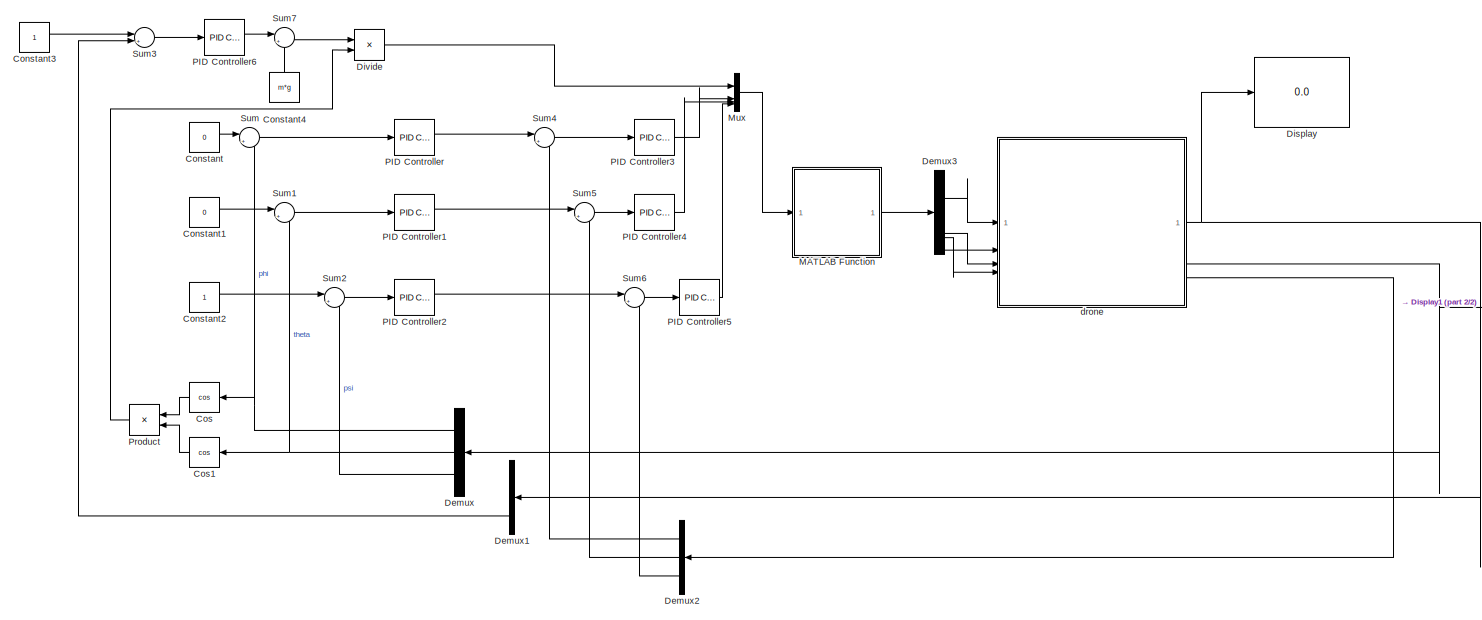
[diagram: root canvas - part 1/2, most of the canvas]
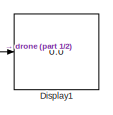
[diagram: root canvas - part 2/2, middle right region]
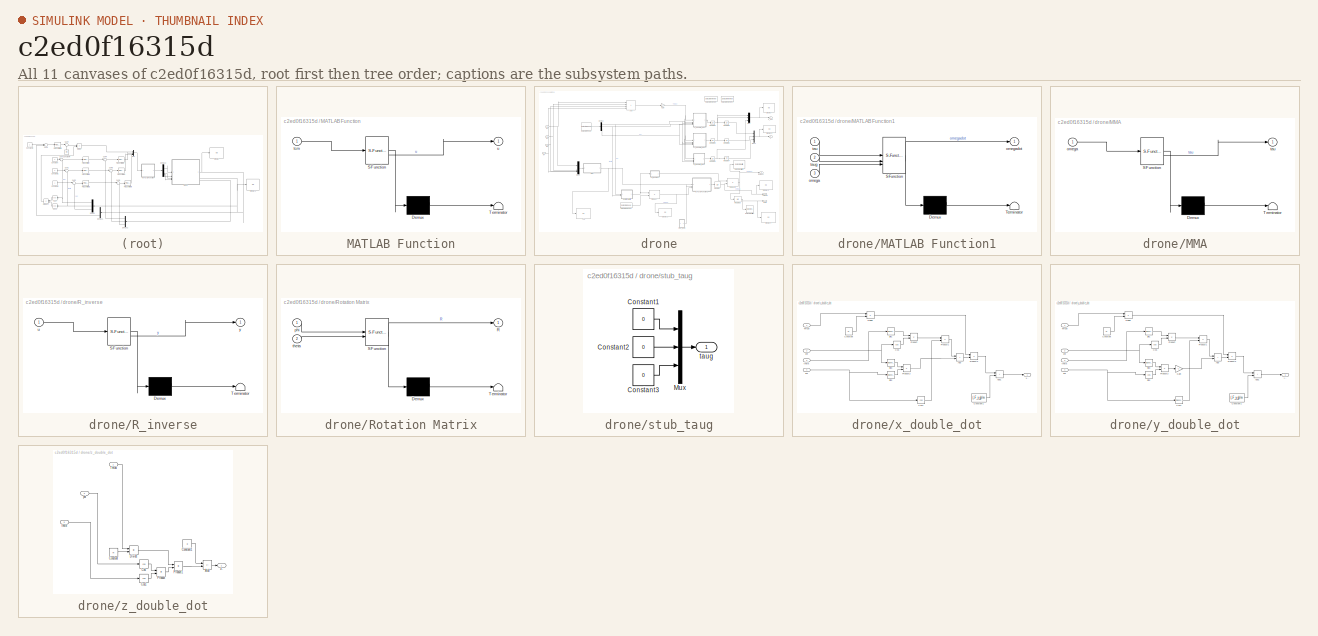
[diagram: thumbnail index - all 11 canvases of the model, root first then tree order]
MODEL slx_c2ed0f16315d
KIND model
CONFIG AbsTol = auto
CONFIG EnableMultiTasking = off
CONFIG FixedStep = auto
CONFIG MaxStep = auto
CONFIG MinStep = auto
CONFIG RelTol = 1e-3
CONFIG SampleTimeConstraint = Unconstrained
CONFIG SolverName = VariableStepAuto
CONFIG StartTime = 0.0
CONFIG StopTime = 10.0
BLOCK [Constant] Constant
  Value = 0
BLOCK [Constant] Constant1
  Value = 0
BLOCK [Constant] Constant2
BLOCK [Constant] Constant3
BLOCK [Constant] Constant4
  NameLocation = right
  Value = m*g
BLOCK [Trigonometry] Cos
  Operator = cos
BLOCK [Trigonometry] Cos1
  Operator = cos
BLOCK [Demux] Demux
  Outputs = 3
BLOCK [Demux] Demux1
  Outputs = 3
BLOCK [Demux] Demux2
  Outputs = 3
BLOCK [Demux] Demux3
BLOCK [Display] Display
  Decimation = 1
BLOCK [Display] Display1
  Decimation = 1
BLOCK [Product] Divide
  Inputs = */
BLOCK [SubSystem] MATLAB Function
  ErrorFcn = Stateflow.Translate.translate
  LibrarySourceBlock = simulink/User-Defined\nFunctions/MATLAB Function
  PermitHierarchicalResolution = ExplicitOnly
  SFBlockType = MATLAB Function
  TreatAsAtomicUnit = on
BLOCK [Demux] MATLAB Function/ Demux 
  Outputs = 1
BLOCK [S-Function] MATLAB Function/ SFunction 
  EnableBusSupport = on
  FunctionName = sf_sfun
  PortCounts = [1 2]
  SFcnIsStateOwnerBlock = off
  SFunctionDeploymentMode = off
  Tag = Stateflow S-Function 5
BLOCK [Terminator] MATLAB Function/ Terminator 
BLOCK [Inport] MATLAB Function/tcm
BLOCK [Outport] MATLAB Function/u
BLOCK [Mux] Mux
  DisplayOption = bar
BLOCK [Reference] PID Controller  REF=slpidlib/PID Controller
  LibrarySourceBlock = simulink/Continuous/PID Controller
  SourceBlock = slpidlib/PID Controller
  SourceType = PID 1dof
BLOCK [Reference] PID Controller1  REF=slpidlib/PID Controller
  LibrarySourceBlock = simulink/Continuous/PID Controller
  SourceBlock = slpidlib/PID Controller
  SourceType = PID 1dof
BLOCK [Reference] PID Controller2  REF=slpidlib/PID Controller
  LibrarySourceBlock = simulink/Continuous/PID Controller
  SourceBlock = slpidlib/PID Controller
  SourceType = PID 1dof
BLOCK [Reference] PID Controller3  REF=slpidlib/PID Controller
  LibrarySourceBlock = simulink/Continuous/PID Controller
  SourceBlock = slpidlib/PID Controller
  SourceType = PID 1dof
BLOCK [Reference] PID Controller4  REF=slpidlib/PID Controller
  LibrarySourceBlock = simulink/Continuous/PID Controller
  SourceBlock = slpidlib/PID Controller
  SourceType = PID 1dof
BLOCK [Reference] PID Controller5  REF=slpidlib/PID Controller
  LibrarySourceBlock = simulink/Continuous/PID Controller
  SourceBlock = slpidlib/PID Controller
  SourceType = PID 1dof
BLOCK [Reference] PID Controller6  REF=slpidlib/PID Controller
  LibrarySourceBlock = simulink/Continuous/PID Controller
  SourceBlock = slpidlib/PID Controller
  SourceType = PID 1dof
BLOCK [Product] Product
BLOCK [Sum] Sum
  Inputs = |+-
BLOCK [Sum] Sum1
  Inputs = |+-
BLOCK [Sum] Sum2
  Inputs = |+-
BLOCK [Sum] Sum3
  Inputs = |+-
BLOCK [Sum] Sum4
  Inputs = |+-
BLOCK [Sum] Sum5
  Inputs = |+-
BLOCK [Sum] Sum6
  Inputs = |+-
BLOCK [Sum] Sum7
  Inputs = |++
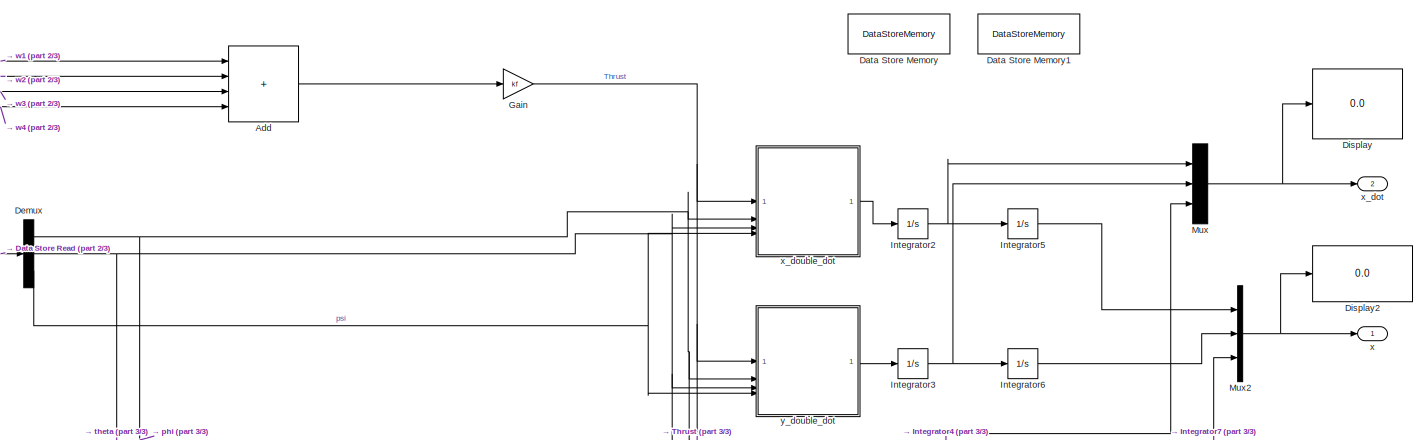
[diagram: drone - part 1/3, full width, top band]
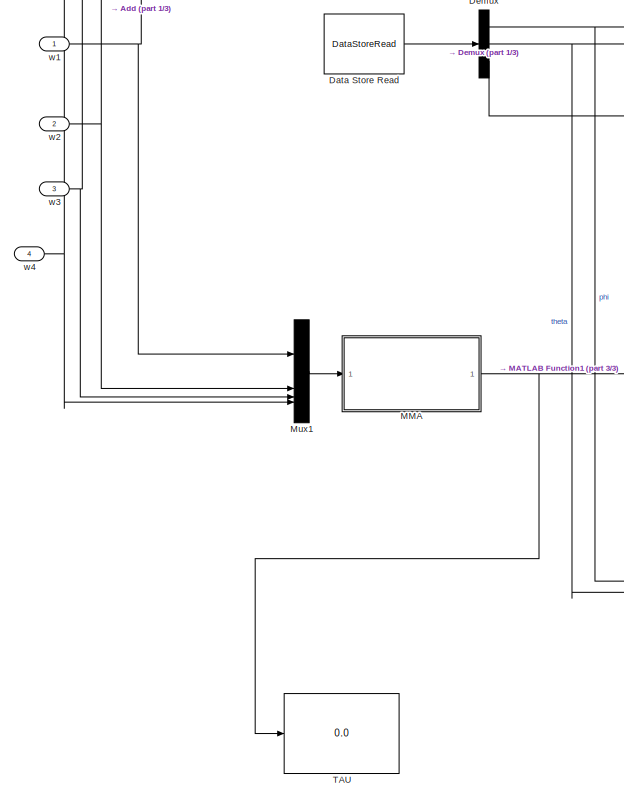
[diagram: drone - part 2/3, middle left region]
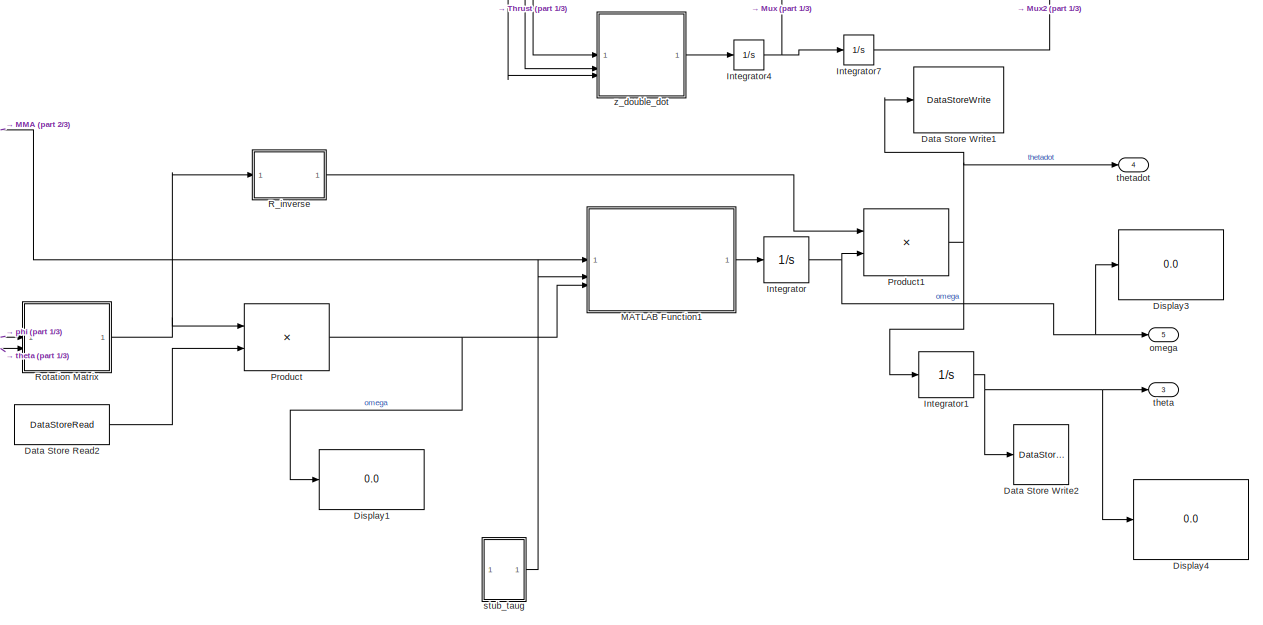
[diagram: drone - part 3/3, bottom center region]
BLOCK [SubSystem] drone
BLOCK [Sum] drone/Add
  IconShape = rectangular
  Inputs = ++++
BLOCK [DataStoreMemory] drone/Data Store Memory
  DataStoreName = theta
  InitialValue = [0 ; 0 ; 0]
  ShowAdditionalParam = off
  WriteAfterWriteMsg = warning
BLOCK [DataStoreMemory] drone/Data Store Memory1
  DataStoreName = thetadot
  InitialValue = [1.4430 ; 0.4620 ; -1.4048\n]
  ShowAdditionalParam = off
  WriteAfterWriteMsg = warning
BLOCK [DataStoreRead] drone/Data Store Read
  DataStoreName = theta
  IndexOptions = Index vector (dialog)
  Indices = 1
  OutputSizes = 1
BLOCK [DataStoreRead] drone/Data Store Read2
  DataStoreName = thetadot
  IndexOptions = Index vector (dialog)
  Indices = 1
  OutputSizes = 1
BLOCK [DataStoreWrite] drone/Data Store Write1
  DataStoreName = thetadot
  IndexOptions = Index vector (dialog)
  Indices = 1
  OutputSizes = 1
BLOCK [DataStoreWrite] drone/Data Store Write2
  DataStoreName = theta
  IndexOptions = Index vector (dialog)
  Indices = 1
  OutputSizes = 1
BLOCK [Demux] drone/Demux
  Outputs = 3
BLOCK [Display] drone/Display
  Decimation = 1
BLOCK [Display] drone/Display1
  Decimation = 1
BLOCK [Display] drone/Display2
  Decimation = 1
BLOCK [Display] drone/Display3
  Decimation = 1
BLOCK [Display] drone/Display4
  Decimation = 1
BLOCK [Gain] drone/Gain
  Gain = kf
BLOCK [Integrator] drone/Integrator
BLOCK [Integrator] drone/Integrator1
  WrapState = on
BLOCK [Integrator] drone/Integrator2
BLOCK [Integrator] drone/Integrator3
BLOCK [Integrator] drone/Integrator4
BLOCK [Integrator] drone/Integrator5
BLOCK [Integrator] drone/Integrator6
BLOCK [Integrator] drone/Integrator7
BLOCK [SubSystem] drone/MATLAB Function1
  ErrorFcn = Stateflow.Translate.translate
  LibrarySourceBlock = simulink/User-Defined\nFunctions/MATLAB Function
  PermitHierarchicalResolution = ExplicitOnly
  SFBlockType = MATLAB Function
  TreatAsAtomicUnit = on
BLOCK [Demux] drone/MATLAB Function1/ Demux 
  Outputs = 1
BLOCK [S-Function] drone/MATLAB Function1/ SFunction 
  EnableBusSupport = on
  FunctionName = sf_sfun
  PortCounts = [3 2]
  SFcnIsStateOwnerBlock = off
  SFunctionDeploymentMode = off
  Tag = Stateflow S-Function 1
BLOCK [Terminator] drone/MATLAB Function1/ Terminator 
BLOCK [Inport] drone/MATLAB Function1/omega
  Port = 3
BLOCK [Outport] drone/MATLAB Function1/omegadot
BLOCK [Inport] drone/MATLAB Function1/tau
BLOCK [Inport] drone/MATLAB Function1/taug
  Port = 2
BLOCK [SubSystem] drone/MMA
  ErrorFcn = Stateflow.Translate.translate
  LibrarySourceBlock = simulink/User-Defined\nFunctions/MATLAB Function
  PermitHierarchicalResolution = ExplicitOnly
  SFBlockType = MATLAB Function
  TreatAsAtomicUnit = on
BLOCK [Demux] drone/MMA/ Demux 
  Outputs = 1
BLOCK [S-Function] drone/MMA/ SFunction 
  EnableBusSupport = on
  FunctionName = sf_sfun
  PortCounts = [1 2]
  SFcnIsStateOwnerBlock = off
  SFunctionDeploymentMode = off
  Tag = Stateflow S-Function 3
BLOCK [Terminator] drone/MMA/ Terminator 
BLOCK [Inport] drone/MMA/omega
BLOCK [Outport] drone/MMA/tau
BLOCK [Mux] drone/Mux
  DisplayOption = bar
  Inputs = 3
BLOCK [Mux] drone/Mux1
  DisplayOption = bar
BLOCK [Mux] drone/Mux2
  DisplayOption = bar
  Inputs = 3
BLOCK [Product] drone/Product
  Multiplication = Matrix(*)
BLOCK [Product] drone/Product1
  Multiplication = Matrix(*)
BLOCK [SubSystem] drone/R_inverse
  ErrorFcn = Stateflow.Translate.translate
  LibrarySourceBlock = simulink/User-Defined\nFunctions/MATLAB Function
  PermitHierarchicalResolution = ExplicitOnly
  SFBlockType = MATLAB Function
  TreatAsAtomicUnit = on
BLOCK [Demux] drone/R_inverse/ Demux 
  Outputs = 1
BLOCK [S-Function] drone/R_inverse/ SFunction 
  EnableBusSupport = on
  FunctionName = sf_sfun
  PortCounts = [1 2]
  SFcnIsStateOwnerBlock = off
  SFunctionDeploymentMode = off
  Tag = Stateflow S-Function 2
BLOCK [Terminator] drone/R_inverse/ Terminator 
BLOCK [Inport] drone/R_inverse/u
BLOCK [Outport] drone/R_inverse/y
BLOCK [SubSystem] drone/Rotation Matrix
  ErrorFcn = Stateflow.Translate.translate
  LibrarySourceBlock = simulink/User-Defined\nFunctions/MATLAB Function
  PermitHierarchicalResolution = ExplicitOnly
  SFBlockType = MATLAB Function
  TreatAsAtomicUnit = on
BLOCK [Demux] drone/Rotation Matrix/ Demux 
  Outputs = 1
BLOCK [S-Function] drone/Rotation Matrix/ SFunction 
  EnableBusSupport = on
  FunctionName = sf_sfun
  PortCounts = [2 2]
  SFcnIsStateOwnerBlock = off
  SFunctionDeploymentMode = off
  Tag = Stateflow S-Function 4
BLOCK [Terminator] drone/Rotation Matrix/ Terminator 
BLOCK [Outport] drone/Rotation Matrix/R
BLOCK [Inport] drone/Rotation Matrix/phi
BLOCK [Inport] drone/Rotation Matrix/theta
  Port = 2
BLOCK [Display] drone/TAU
  Decimation = 1
BLOCK [Outport] drone/omega
  Port = 5
BLOCK [SubSystem] drone/stub_taug
BLOCK [Constant] drone/stub_taug/Constant1
  Value = 0
BLOCK [Constant] drone/stub_taug/Constant2
  Value = 0
BLOCK [Constant] drone/stub_taug/Constant3
  Value = 0
BLOCK [Mux] drone/stub_taug/Mux
  DisplayOption = bar
  Inputs = 3
BLOCK [Outport] drone/stub_taug/taug
BLOCK [Outport] drone/theta
  Port = 3
BLOCK [Outport] drone/thetadot
  Port = 4
BLOCK [Inport] drone/w1
BLOCK [Inport] drone/w2
  Port = 2
BLOCK [Inport] drone/w3
  Port = 3
BLOCK [Inport] drone/w4
  Port = 4
BLOCK [Outport] drone/x
BLOCK [Outport] drone/x_dot
  Port = 2
BLOCK [SubSystem] drone/x_double_dot
BLOCK [Sum] drone/x_double_dot/Add
  IconShape = rectangular
BLOCK [Sum] drone/x_double_dot/Add1
  IconShape = rectangular
BLOCK [Constant] drone/x_double_dot/Constant
  Value = m
BLOCK [Constant] drone/x_double_dot/Constant1
  Value = (-F_x_g)/m
BLOCK [Trigonometry] drone/x_double_dot/Cos
  Operator = cos
BLOCK [Trigonometry] drone/x_double_dot/Cos1
  Operator = cos
BLOCK [Product] drone/x_double_dot/Divide
  Inputs = */
BLOCK [Product] drone/x_double_dot/Product
BLOCK [Product] drone/x_double_dot/Product1
BLOCK [Product] drone/x_double_dot/Product2
BLOCK [Product] drone/x_double_dot/Product3
BLOCK [Trigonometry] drone/x_double_dot/Sin1
BLOCK [Trigonometry] drone/x_double_dot/Sin2
BLOCK [Trigonometry] drone/x_double_dot/Sin3
BLOCK [Inport] drone/x_double_dot/Thrust
BLOCK [Inport] drone/x_double_dot/phi
  Port = 2
BLOCK [Inport] drone/x_double_dot/psi
  Port = 4
BLOCK [Inport] drone/x_double_dot/theta
  Port = 3
BLOCK [Outport] drone/x_double_dot/x..
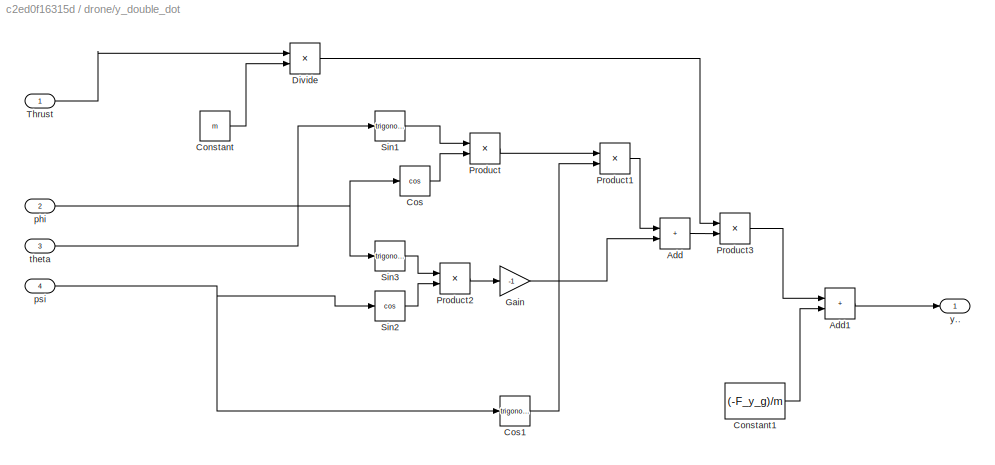
BLOCK [SubSystem] drone/y_double_dot
BLOCK [Sum] drone/y_double_dot/Add
  IconShape = rectangular
BLOCK [Sum] drone/y_double_dot/Add1
  IconShape = rectangular
BLOCK [Constant] drone/y_double_dot/Constant
  Value = m
BLOCK [Constant] drone/y_double_dot/Constant1
  Value = (-F_y_g)/m
BLOCK [Trigonometry] drone/y_double_dot/Cos
  Operator = cos
BLOCK [Trigonometry] drone/y_double_dot/Cos1
BLOCK [Product] drone/y_double_dot/Divide
  Inputs = */
BLOCK [Gain] drone/y_double_dot/Gain
  Gain = -1
BLOCK [Product] drone/y_double_dot/Product
BLOCK [Product] drone/y_double_dot/Product1
BLOCK [Product] drone/y_double_dot/Product2
BLOCK [Product] drone/y_double_dot/Product3
BLOCK [Trigonometry] drone/y_double_dot/Sin1
BLOCK [Trigonometry] drone/y_double_dot/Sin2
  Operator = cos
BLOCK [Trigonometry] drone/y_double_dot/Sin3
BLOCK [Inport] drone/y_double_dot/Thrust
BLOCK [Inport] drone/y_double_dot/phi
  Port = 2
BLOCK [Inport] drone/y_double_dot/psi
  Port = 4
BLOCK [Inport] drone/y_double_dot/theta
  Port = 3
BLOCK [Outport] drone/y_double_dot/y..
BLOCK [SubSystem] drone/z_double_dot
BLOCK [Sum] drone/z_double_dot/Add
  IconShape = rectangular
  Inputs = -+
BLOCK [Constant] drone/z_double_dot/Constant
  Value = m
BLOCK [Constant] drone/z_double_dot/Constant1
  Value = g
BLOCK [Trigonometry] drone/z_double_dot/Cos
  Operator = cos
BLOCK [Trigonometry] drone/z_double_dot/Cos1
  Operator = cos
BLOCK [Product] drone/z_double_dot/Divide
  Inputs = */
BLOCK [Product] drone/z_double_dot/Product
BLOCK [Product] drone/z_double_dot/Product1
BLOCK [Inport] drone/z_double_dot/Thrust
BLOCK [Inport] drone/z_double_dot/phi
  Port = 2
BLOCK [Inport] drone/z_double_dot/theta
  Port = 3
BLOCK [Outport] drone/z_double_dot/z..
LINE Constant1:1 -> Sum1:1
LINE Constant2:1 -> Sum2:1
LINE Constant3:1 -> Sum3:1
LINE Constant4:1 -> Sum7:2
LINE Constant:1 -> Sum:1
LINE Cos1:1 -> Product:2
LINE Cos:1 -> Product:1
LINE Demux1:3 -> Sum3:2
LINE Demux2:1 -> Sum4:2
LINE Demux2:2 -> Sum5:2
LINE Demux2:3 -> Sum6:2
LINE Demux3:1 -> drone:1
LINE Demux3:2 -> drone:2
LINE Demux3:3 -> drone:3
LINE Demux3:4 -> drone:4
NET Demux:1 -> Cos:1, Sum:2
NET Demux:2 -> Cos1:1, Sum1:2
LINE Demux:3 -> Sum2:2
LINE Divide:1 -> Mux:1
LINE MATLAB Function:1 -> Demux3:1
LINE Mux:1 -> MATLAB Function:1
LINE PID Controller1:1 -> Sum5:1
LINE PID Controller2:1 -> Sum6:1
LINE PID Controller3:1 -> Mux:2
LINE PID Controller4:1 -> Mux:3
LINE PID Controller5:1 -> Mux:4
LINE PID Controller6:1 -> Sum7:1
LINE PID Controller:1 -> Sum4:1
LINE Product:1 -> Divide:2
LINE Sum1:1 -> PID Controller1:1
LINE Sum2:1 -> PID Controller2:1
LINE Sum3:1 -> PID Controller6:1
LINE Sum4:1 -> PID Controller3:1
LINE Sum5:1 -> PID Controller4:1
LINE Sum6:1 -> PID Controller5:1
LINE Sum7:1 -> Divide:1
LINE Sum:1 -> PID Controller:1
LINE drone/Add:1 -> drone/Gain:1
LINE drone/Data Store Read2:1 -> drone/Product:2
LINE drone/Data Store Read:1 -> drone/Demux:1
NET drone/Demux:1 -> drone/Rotation Matrix:1, drone/x_double_dot:2, drone/y_double_dot:2, drone/z_double_dot:2
NET drone/Demux:2 -> drone/Rotation Matrix:2, drone/x_double_dot:3, drone/y_double_dot:3, drone/z_double_dot:3
NET drone/Demux:3 -> drone/x_double_dot:4, drone/y_double_dot:4
NET drone/Gain:1 -> drone/x_double_dot:1, drone/y_double_dot:1, drone/z_double_dot:1
NET drone/Integrator1:1 -> drone/Data Store Write2:1, drone/Display4:1, drone/theta:1
NET drone/Integrator2:1 -> drone/Integrator5:1, drone/Mux:1
NET drone/Integrator3:1 -> drone/Integrator6:1, drone/Mux:2
NET drone/Integrator4:1 -> drone/Integrator7:1, drone/Mux:3
LINE drone/Integrator5:1 -> drone/Mux2:1
LINE drone/Integrator6:1 -> drone/Mux2:2
LINE drone/Integrator7:1 -> drone/Mux2:3
NET drone/Integrator:1 -> drone/Display3:1, drone/Product1:2, drone/omega:1
LINE drone/MATLAB Function1:1 -> drone/Integrator:1
NET drone/MMA:1 -> drone/MATLAB Function1:1, drone/TAU:1
LINE drone/Mux1:1 -> drone/MMA:1
NET drone/Mux2:1 -> drone/Display2:1, drone/x:1
NET drone/Mux:1 -> drone/Display:1, drone/x_dot:1
NET drone/Product1:1 -> drone/Data Store Write1:1, drone/Integrator1:1, drone/thetadot:1
NET drone/Product:1 -> drone/Display1:1, drone/MATLAB Function1:3
LINE drone/R_inverse:1 -> drone/Product1:1
NET drone/Rotation Matrix:1 -> drone/Product:1, drone/R_inverse:1
LINE drone/stub_taug/Constant1:1 -> drone/stub_taug/Mux:1
LINE drone/stub_taug/Constant2:1 -> drone/stub_taug/Mux:2
LINE drone/stub_taug/Constant3:1 -> drone/stub_taug/Mux:3
LINE drone/stub_taug/Mux:1 -> drone/stub_taug/taug:1
LINE drone/stub_taug:1 -> drone/MATLAB Function1:2
NET drone/w1:1 -> drone/Add:1, drone/Mux1:1
NET drone/w2:1 -> drone/Add:2, drone/Mux1:2
NET drone/w3:1 -> drone/Add:3, drone/Mux1:3
NET drone/w4:1 -> drone/Add:4, drone/Mux1:4
LINE drone/x_double_dot/Add1:1 -> drone/x_double_dot/x..:1
LINE drone/x_double_dot/Add:1 -> drone/x_double_dot/Product3:2
LINE drone/x_double_dot/Constant1:1 -> drone/x_double_dot/Add1:2
LINE drone/x_double_dot/Constant:1 -> drone/x_double_dot/Divide:2
LINE drone/x_double_dot/Cos1:1 -> drone/x_double_dot/Product1:2
LINE drone/x_double_dot/Cos:1 -> drone/x_double_dot/Product:2
LINE drone/x_double_dot/Divide:1 -> drone/x_double_dot/Product3:1
LINE drone/x_double_dot/Product1:1 -> drone/x_double_dot/Add:1
LINE drone/x_double_dot/Product2:1 -> drone/x_double_dot/Add:2
LINE drone/x_double_dot/Product3:1 -> drone/x_double_dot/Add1:1
LINE drone/x_double_dot/Product:1 -> drone/x_double_dot/Product1:1
LINE drone/x_double_dot/Sin1:1 -> drone/x_double_dot/Product:1
LINE drone/x_double_dot/Sin2:1 -> drone/x_double_dot/Product2:2
LINE drone/x_double_dot/Sin3:1 -> drone/x_double_dot/Product2:1
LINE drone/x_double_dot/Thrust:1 -> drone/x_double_dot/Divide:1
NET drone/x_double_dot/phi:1 -> drone/x_double_dot/Cos:1, drone/x_double_dot/Sin3:1
NET drone/x_double_dot/psi:1 -> drone/x_double_dot/Cos1:1, drone/x_double_dot/Sin2:1
LINE drone/x_double_dot/theta:1 -> drone/x_double_dot/Sin1:1
LINE drone/x_double_dot:1 -> drone/Integrator2:1
LINE drone/y_double_dot/Add1:1 -> drone/y_double_dot/y..:1
LINE drone/y_double_dot/Add:1 -> drone/y_double_dot/Product3:2
LINE drone/y_double_dot/Constant1:1 -> drone/y_double_dot/Add1:2
LINE drone/y_double_dot/Constant:1 -> drone/y_double_dot/Divide:2
LINE drone/y_double_dot/Cos1:1 -> drone/y_double_dot/Product1:2
LINE drone/y_double_dot/Cos:1 -> drone/y_double_dot/Product:2
LINE drone/y_double_dot/Divide:1 -> drone/y_double_dot/Product3:1
LINE drone/y_double_dot/Gain:1 -> drone/y_double_dot/Add:2
LINE drone/y_double_dot/Product1:1 -> drone/y_double_dot/Add:1
LINE drone/y_double_dot/Product2:1 -> drone/y_double_dot/Gain:1
LINE drone/y_double_dot/Product3:1 -> drone/y_double_dot/Add1:1
LINE drone/y_double_dot/Product:1 -> drone/y_double_dot/Product1:1
LINE drone/y_double_dot/Sin1:1 -> drone/y_double_dot/Product:1
LINE drone/y_double_dot/Sin2:1 -> drone/y_double_dot/Product2:2
LINE drone/y_double_dot/Sin3:1 -> drone/y_double_dot/Product2:1
LINE drone/y_double_dot/Thrust:1 -> drone/y_double_dot/Divide:1
NET drone/y_double_dot/phi:1 -> drone/y_double_dot/Cos:1, drone/y_double_dot/Sin3:1
NET drone/y_double_dot/psi:1 -> drone/y_double_dot/Cos1:1, drone/y_double_dot/Sin2:1
LINE drone/y_double_dot/theta:1 -> drone/y_double_dot/Sin1:1
LINE drone/y_double_dot:1 -> drone/Integrator3:1
LINE drone/z_double_dot/Add:1 -> drone/z_double_dot/z..:1
LINE drone/z_double_dot/Constant1:1 -> drone/z_double_dot/Add:1
LINE drone/z_double_dot/Constant:1 -> drone/z_double_dot/Divide:2
LINE drone/z_double_dot/Cos1:1 -> drone/z_double_dot/Product:2
LINE drone/z_double_dot/Cos:1 -> drone/z_double_dot/Product:1
LINE drone/z_double_dot/Divide:1 -> drone/z_double_dot/Product1:1
LINE drone/z_double_dot/Product1:1 -> drone/z_double_dot/Add:2
LINE drone/z_double_dot/Product:1 -> drone/z_double_dot/Product1:2
LINE drone/z_double_dot/Thrust:1 -> drone/z_double_dot/Divide:1
LINE drone/z_double_dot/phi:1 -> drone/z_double_dot/Cos:1
LINE drone/z_double_dot/theta:1 -> drone/z_double_dot/Cos1:1
LINE drone/z_double_dot:1 -> drone/Integrator4:1
NET drone:1 -> Demux1:1, Display:1
NET drone:3 -> Demux:1, Display1:1
LINE drone:5 -> Demux2:1
note: NET lines group one-source signal fan-out (src -> all destinations, sorted); 1:1 wires keep LINE
CHART drone/R_inverse states=1 transitions=1
  STATE_LABEL 'eML_blk_kernel()'
  STATE_LABEL 'SCRIPT:\nfunction y = fcn(u)\n\ny = inv(u);\n'
CHART drone/MMA states=1 transitions=1
  STATE_LABEL 'eML_blk_kernel()'
  STATE_LABEL 'SCRIPT:\nfunction tau = fcn(omega)\nkf = 0.005022;\nkm = 1.858*10^-5;\nL = 0.032;\nmma = [ 0 kf*L 0 -kf*L ; -kf*L 0 kf*L 0 ; km -km km -km];\ntau = mma*omega;\n'
CHART drone/Rotation Matrix states=1 transitions=1
  STATE_LABEL 'eML_blk_kernel()'
  STATE_LABEL 'SCRIPT:\nfunction R = fcn(phi,theta)\nR = [1 0 -sin(theta); 0 cos(phi) cos(theta)*sin(phi) ; 0 -sin(phi) cos(theta)*cos(phi)];\n\n'
CHART MATLAB Function states=1 transitions=1
  STATE_LABEL 'eML_blk_kernel()'
  STATE_LABEL 'SCRIPT:\nfunction u = fcn(tcm)\nkf = 0.005022;\nkm = 1.858*10^-5;\nL =  32;\n\nmatrix = [1 1 1 1 ; 0 kf*L 0 -kf*L ; -kf*L 0 kf*L 0 ; km -km km -km];\ninv_matrix = inv(matrix);\nu = inv_matrix*tcm;\n\n\n'
CHART drone/MATLAB Function1 states=1 transitions=1
  STATE_LABEL 'eML_blk_kernel()'
  STATE_LABEL 'SCRIPT:\nfunction omegadot = fcn(tau,taug,omega)\nI = [2.3951*10^-5 0 0 ; 0 2.3951*10^-5 0 ; 0 0 3.2347*10^-5];\noutput = inv(I)*((tau-taug) - cross(omega,I*omega));\nomegadot = output;\n'
CHART  states=0 transitions=0
CHART  states=0 transitions=0
CHART  states=0 transitions=0
CHART  states=0 transitions=0
CHART  states=0 transitions=0
